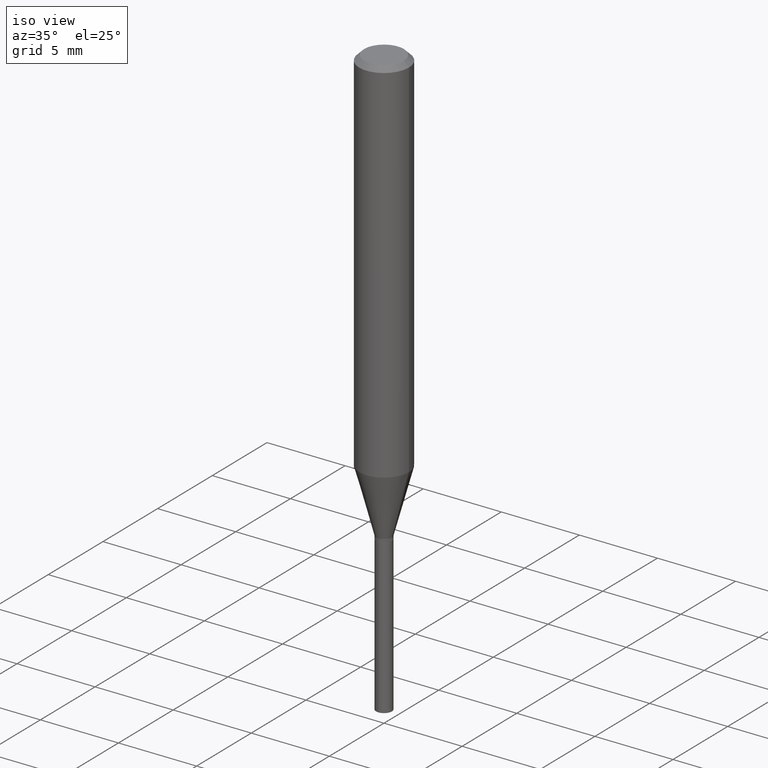
[diagram: clean part render]
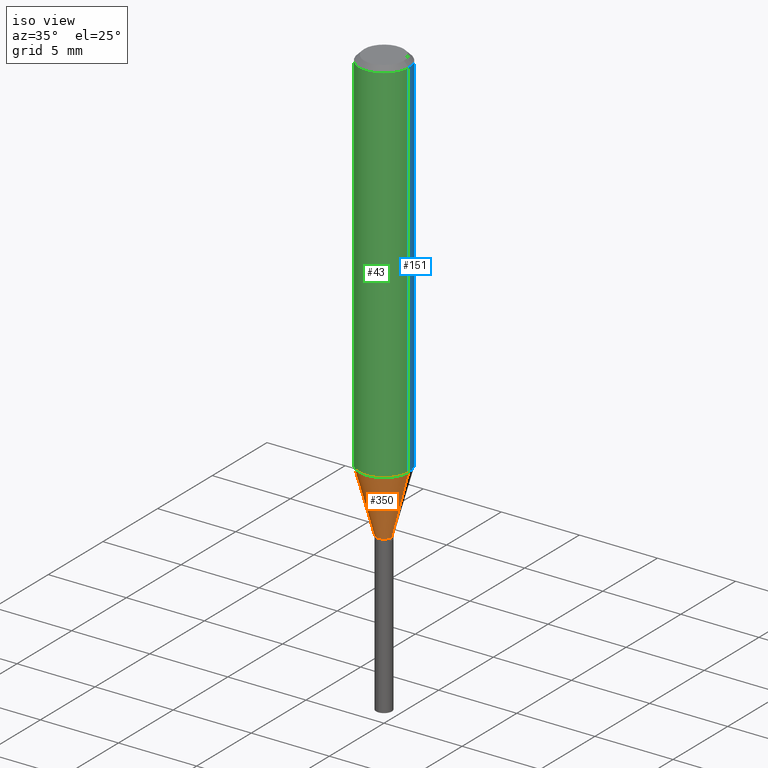
[diagram: same view with three faces highlighted in distinct colors, each labeled with its STEP entity id]
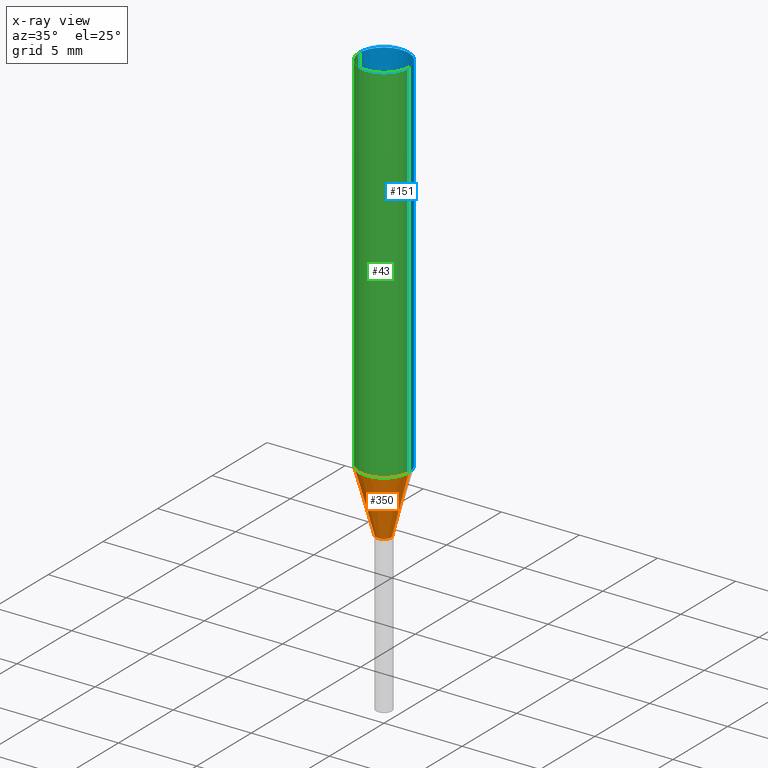
[diagram: x-ray of the same camera — body ghosted, the three highlighted faces saturated]
A machine part, iso view with three faces highlighted in distinct colors.
The next image is the same camera in x-ray (body ghosted, the three faces saturated) — at least one of them is partly hidden behind the body in this view.
Their STEP definitions:

[orange] entity #350 — the highlighted conical surface has half-angle 15 deg.
#20 = EDGE_CURVE ( 'NONE', #64, #198, #291, .T. ) ;
#34 = DIRECTION ( 'NONE',  ( 1.000000000000000000, -6.982962677686278543E-15, 0.000000000000000000 ) ) ;
#38 = VECTOR ( 'NONE', #440, 39.37007874015748854 ) ;
#46 = DIRECTION ( 'NONE',  ( -2.445468806185136597E-29, 3.491481338843145583E-15, 1.000000000000000000 ) ) ;
#50 = CONICAL_SURFACE ( 'NONE', #222, 0.01969999999999999876, 0.2617993877991499629 ) ;
#64 = VERTEX_POINT ( 'NONE', #75 ) ;
#70 = CARTESIAN_POINT ( 'NONE',  ( 2.675587420847158338E-29, -3.820029732828286359E-15, -1.094100000000000295 ) ) ;
#75 = CARTESIAN_POINT ( 'NONE',  ( 0.01969999999999999876, -3.957594097578706363E-15, -1.094100000000000295 ) ) ;
#88 = EDGE_CURVE ( 'NONE', #157, #198, #487, .T. ) ;
#99 = CARTESIAN_POINT ( 'NONE',  ( 0.06250000000000011102, -3.698764390073353980E-15, -0.9343682254360521355 ) ) ;
#157 = VERTEX_POINT ( 'NONE', #473 ) ;
#170 = AXIS2_PLACEMENT_3D ( 'NONE', #360, #46, #347 ) ;
#174 = CARTESIAN_POINT ( 'NONE',  ( 0.01969999999999999876, -3.957594097578706363E-15, -1.094100000000000295 ) ) ;
#195 = EDGE_CURVE ( 'NONE', #256, #64, #357, .T. ) ;
#198 = VERTEX_POINT ( 'NONE', #99 ) ;
#209 = CARTESIAN_POINT ( 'NONE',  ( -0.01969999999999999876, -3.680052813883547051E-15, -1.094100000000000295 ) ) ;
#210 = AXIS2_PLACEMENT_3D ( 'NONE', #376, #480, #286 ) ;
#217 = LINE ( 'NONE', #209, #454 ) ;
#222 = AXIS2_PLACEMENT_3D ( 'NONE', #70, #325, #34 ) ;
#230 = ORIENTED_EDGE ( 'NONE', *, *, #283, .F. ) ;
#250 = EDGE_LOOP ( 'NONE', ( #230, #395, #273, #344 ) ) ;
#256 = VERTEX_POINT ( 'NONE', #475 ) ;
#273 = ORIENTED_EDGE ( 'NONE', *, *, #20, .T. ) ;
#283 = EDGE_CURVE ( 'NONE', #256, #157, #217, .T. ) ;
#286 = DIRECTION ( 'NONE',  ( 1.000000000000000000, -6.982962677686265922E-15, 0.000000000000000000 ) ) ;
#291 = LINE ( 'NONE', #174, #38 ) ;
#325 = DIRECTION ( 'NONE',  ( -2.445468806185136597E-29, 3.491481338843145583E-15, 1.000000000000000000 ) ) ;
#344 = ORIENTED_EDGE ( 'NONE', *, *, #88, .F. ) ;
#347 = DIRECTION ( 'NONE',  ( 1.000000000000000000, -6.982962677686278543E-15, 0.000000000000000000 ) ) ;
#350 = ADVANCED_FACE ( 'NONE', ( #485 ), #50, .T. ) ;
#357 = CIRCLE ( 'NONE', #170, 0.01969999999999999876 ) ;
#360 = CARTESIAN_POINT ( 'NONE',  ( 2.675587420847158338E-29, -3.820029732828286359E-15, -1.094100000000000295 ) ) ;
#376 = CARTESIAN_POINT ( 'NONE',  ( 2.284968348794427209E-29, -3.262329222717961522E-15, -0.9343682254360521355 ) ) ;
#395 = ORIENTED_EDGE ( 'NONE', *, *, #195, .T. ) ;
#434 = DIRECTION ( 'NONE',  ( -0.2588190451025212391, 5.211531920934549464E-15, 0.9659258262890679791 ) ) ;
#440 = DIRECTION ( 'NONE',  ( 0.2588190451025212391, 1.565188264969622362E-15, 0.9659258262890679791 ) ) ;
#454 = VECTOR ( 'NONE', #434, 39.37007874015748854 ) ;
#473 = CARTESIAN_POINT ( 'NONE',  ( -0.06250000000000011102, -2.818240012867898117E-15, -0.9343682254360521355 ) ) ;
#475 = CARTESIAN_POINT ( 'NONE',  ( -0.01969999999999999876, -3.689479813498422381E-15, -1.094100000000000295 ) ) ;
#480 = DIRECTION ( 'NONE',  ( -2.445468806185136597E-29, 3.491481338843145583E-15, 1.000000000000000000 ) ) ;
#485 = FACE_OUTER_BOUND ( 'NONE', #250, .T. ) ;
#487 = CIRCLE ( 'NONE', #210, 0.06250000000000011102 ) ;

[blue] entity #151 — the highlighted cylindrical surface (edge-blend (fillet) strip) has radius 1.5875 mm, axis along (-0, 0, 1).
#9 = DIRECTION ( 'NONE',  ( -2.445468806185136877E-29, 3.491481338843145188E-15, 1.000000000000000000 ) ) ;
#11 = EDGE_CURVE ( 'NONE', #373, #155, #243, .T. ) ;
#51 = EDGE_LOOP ( 'NONE', ( #359, #52, #417, #234 ) ) ;
#52 = ORIENTED_EDGE ( 'NONE', *, *, #386, .T. ) ;
#54 = FACE_OUTER_BOUND ( 'NONE', #51, .T. ) ;
#66 = DIRECTION ( 'NONE',  ( -2.445468806185136877E-29, 3.491481338843145188E-15, 1.000000000000000000 ) ) ;
#73 = CARTESIAN_POINT ( 'NONE',  ( 0.06250000000000005551, -4.364351673553920638E-16, 3.047610484872462323E-30 ) ) ;
#83 = EDGE_CURVE ( 'NONE', #198, #373, #180, .T. ) ;
#99 = CARTESIAN_POINT ( 'NONE',  ( 0.06250000000000011102, -3.698764390073353980E-15, -0.9343682254360521355 ) ) ;
#103 = CARTESIAN_POINT ( 'NONE',  ( 0.06250000000000000000, -4.800786840909312308E-16, -0.01250000000000008049 ) ) ;
#109 = VECTOR ( 'NONE', #66, 39.37007874015748143 ) ;
#126 = DIRECTION ( 'NONE',  ( -2.445468806185136597E-29, 3.491481338843145583E-15, 1.000000000000000000 ) ) ;
#141 = DIRECTION ( 'NONE',  ( -2.445468806185136597E-29, 3.491481338843145583E-15, 1.000000000000000000 ) ) ;
#142 = DIRECTION ( 'NONE',  ( 1.000000000000000000, -6.982962677686266711E-15, 0.000000000000000000 ) ) ;
#146 = CARTESIAN_POINT ( 'NONE',  ( 3.056836007731440539E-31, -4.364351673553960451E-17, -0.01250000000000008049 ) ) ;
#151 = ADVANCED_FACE ( 'NONE', ( #54 ), #196, .T. ) ;
#155 = VERTEX_POINT ( 'NONE', #398 ) ;
#157 = VERTEX_POINT ( 'NONE', #473 ) ;
#169 = CARTESIAN_POINT ( 'NONE',  ( 2.284968348794427209E-29, -3.262329222717961522E-15, -0.9343682254360521355 ) ) ;
#180 = LINE ( 'NONE', #73, #109 ) ;
#187 = AXIS2_PLACEMENT_3D ( 'NONE', #314, #126, #241 ) ;
#196 = CYLINDRICAL_SURFACE ( 'NONE', #187, 0.06250000000000005551 ) ;
#198 = VERTEX_POINT ( 'NONE', #99 ) ;
#211 = VECTOR ( 'NONE', #9, 39.37007874015748143 ) ;
#234 = ORIENTED_EDGE ( 'NONE', *, *, #83, .F. ) ;
#241 = DIRECTION ( 'NONE',  ( 1.000000000000000000, -6.982962677686266711E-15, 4.876176775795935232E-29 ) ) ;
#243 = CIRCLE ( 'NONE', #441, 0.06250000000000000000 ) ;
#266 = EDGE_CURVE ( 'NONE', #198, #157, #333, .T. ) ;
#282 = DIRECTION ( 'NONE',  ( 1.000000000000000000, -6.982962677686265922E-15, 0.000000000000000000 ) ) ;
#297 = DIRECTION ( 'NONE',  ( -2.445468806185136597E-29, 3.491481338843145583E-15, 1.000000000000000000 ) ) ;
#314 = CARTESIAN_POINT ( 'NONE',  ( 0.000000000000000000, 0.000000000000000000, 0.000000000000000000 ) ) ;
#333 = CIRCLE ( 'NONE', #477, 0.06250000000000011102 ) ;
#359 = ORIENTED_EDGE ( 'NONE', *, *, #266, .T. ) ;
#373 = VERTEX_POINT ( 'NONE', #103 ) ;
#382 = LINE ( 'NONE', #419, #211 ) ;
#386 = EDGE_CURVE ( 'NONE', #157, #155, #382, .T. ) ;
#398 = CARTESIAN_POINT ( 'NONE',  ( -0.06250000000000000000, -1.208897159876686939E-15, -0.01250000000000008049 ) ) ;
#417 = ORIENTED_EDGE ( 'NONE', *, *, #11, .F. ) ;
#419 = CARTESIAN_POINT ( 'NONE',  ( -0.06250000000000005551, 4.440892098500630106E-16, -3.074334431409318916E-30 ) ) ;
#441 = AXIS2_PLACEMENT_3D ( 'NONE', #146, #297, #142 ) ;
#473 = CARTESIAN_POINT ( 'NONE',  ( -0.06250000000000011102, -2.818240012867898117E-15, -0.9343682254360521355 ) ) ;
#477 = AXIS2_PLACEMENT_3D ( 'NONE', #169, #141, #282 ) ;

[green] entity #43 — the highlighted cylindrical surface (edge-blend (fillet) strip) has radius 1.5875 mm, axis along (-0, 0, 1).
#9 = DIRECTION ( 'NONE',  ( -2.445468806185136877E-29, 3.491481338843145188E-15, 1.000000000000000000 ) ) ;
#43 = ADVANCED_FACE ( 'NONE', ( #370 ), #295, .T. ) ;
#66 = DIRECTION ( 'NONE',  ( -2.445468806185136877E-29, 3.491481338843145188E-15, 1.000000000000000000 ) ) ;
#73 = CARTESIAN_POINT ( 'NONE',  ( 0.06250000000000005551, -4.364351673553920638E-16, 3.047610484872462323E-30 ) ) ;
#77 = AXIS2_PLACEMENT_3D ( 'NONE', #135, #293, #444 ) ;
#83 = EDGE_CURVE ( 'NONE', #198, #373, #180, .T. ) ;
#87 = ORIENTED_EDGE ( 'NONE', *, *, #386, .F. ) ;
#88 = EDGE_CURVE ( 'NONE', #157, #198, #487, .T. ) ;
#89 = ORIENTED_EDGE ( 'NONE', *, *, #88, .T. ) ;
#99 = CARTESIAN_POINT ( 'NONE',  ( 0.06250000000000011102, -3.698764390073353980E-15, -0.9343682254360521355 ) ) ;
#103 = CARTESIAN_POINT ( 'NONE',  ( 0.06250000000000000000, -4.800786840909312308E-16, -0.01250000000000008049 ) ) ;
#109 = VECTOR ( 'NONE', #66, 39.37007874015748143 ) ;
#135 = CARTESIAN_POINT ( 'NONE',  ( 3.056836007731440539E-31, -4.364351673553960451E-17, -0.01250000000000008049 ) ) ;
#136 = DIRECTION ( 'NONE',  ( 1.000000000000000000, -6.982962677686266711E-15, 4.876176775795935232E-29 ) ) ;
#144 = CIRCLE ( 'NONE', #77, 0.06250000000000000000 ) ;
#155 = VERTEX_POINT ( 'NONE', #398 ) ;
#157 = VERTEX_POINT ( 'NONE', #473 ) ;
#180 = LINE ( 'NONE', #73, #109 ) ;
#198 = VERTEX_POINT ( 'NONE', #99 ) ;
#210 = AXIS2_PLACEMENT_3D ( 'NONE', #376, #480, #286 ) ;
#211 = VECTOR ( 'NONE', #9, 39.37007874015748143 ) ;
#269 = ORIENTED_EDGE ( 'NONE', *, *, #356, .F. ) ;
#286 = DIRECTION ( 'NONE',  ( 1.000000000000000000, -6.982962677686265922E-15, 0.000000000000000000 ) ) ;
#293 = DIRECTION ( 'NONE',  ( -2.445468806185136597E-29, 3.491481338843145583E-15, 1.000000000000000000 ) ) ;
#295 = CYLINDRICAL_SURFACE ( 'NONE', #348, 0.06250000000000005551 ) ;
#332 = DIRECTION ( 'NONE',  ( -2.445468806185136597E-29, 3.491481338843145583E-15, 1.000000000000000000 ) ) ;
#348 = AXIS2_PLACEMENT_3D ( 'NONE', #445, #332, #136 ) ;
#356 = EDGE_CURVE ( 'NONE', #155, #373, #144, .T. ) ;
#370 = FACE_OUTER_BOUND ( 'NONE', #490, .T. ) ;
#373 = VERTEX_POINT ( 'NONE', #103 ) ;
#376 = CARTESIAN_POINT ( 'NONE',  ( 2.284968348794427209E-29, -3.262329222717961522E-15, -0.9343682254360521355 ) ) ;
#382 = LINE ( 'NONE', #419, #211 ) ;
#386 = EDGE_CURVE ( 'NONE', #157, #155, #382, .T. ) ;
#398 = CARTESIAN_POINT ( 'NONE',  ( -0.06250000000000000000, -1.208897159876686939E-15, -0.01250000000000008049 ) ) ;
#419 = CARTESIAN_POINT ( 'NONE',  ( -0.06250000000000005551, 4.440892098500630106E-16, -3.074334431409318916E-30 ) ) ;
#432 = ORIENTED_EDGE ( 'NONE', *, *, #83, .T. ) ;
#444 = DIRECTION ( 'NONE',  ( 1.000000000000000000, -6.982962677686266711E-15, 0.000000000000000000 ) ) ;
#445 = CARTESIAN_POINT ( 'NONE',  ( 0.000000000000000000, 0.000000000000000000, 0.000000000000000000 ) ) ;
#473 = CARTESIAN_POINT ( 'NONE',  ( -0.06250000000000011102, -2.818240012867898117E-15, -0.9343682254360521355 ) ) ;
#480 = DIRECTION ( 'NONE',  ( -2.445468806185136597E-29, 3.491481338843145583E-15, 1.000000000000000000 ) ) ;
#487 = CIRCLE ( 'NONE', #210, 0.06250000000000011102 ) ;
#490 = EDGE_LOOP ( 'NONE', ( #87, #89, #432, #269 ) ) ;